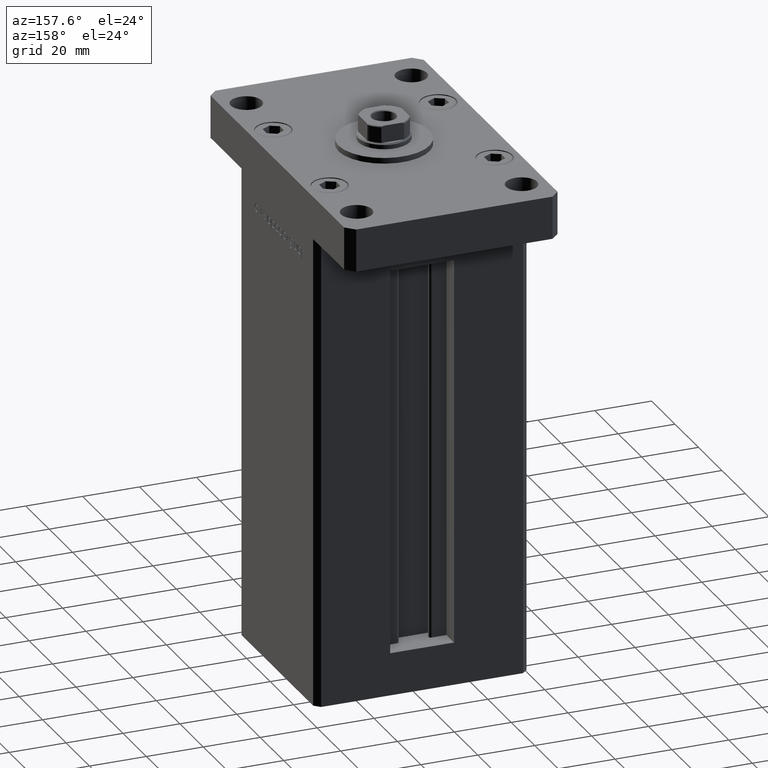
[diagram: clean part render]
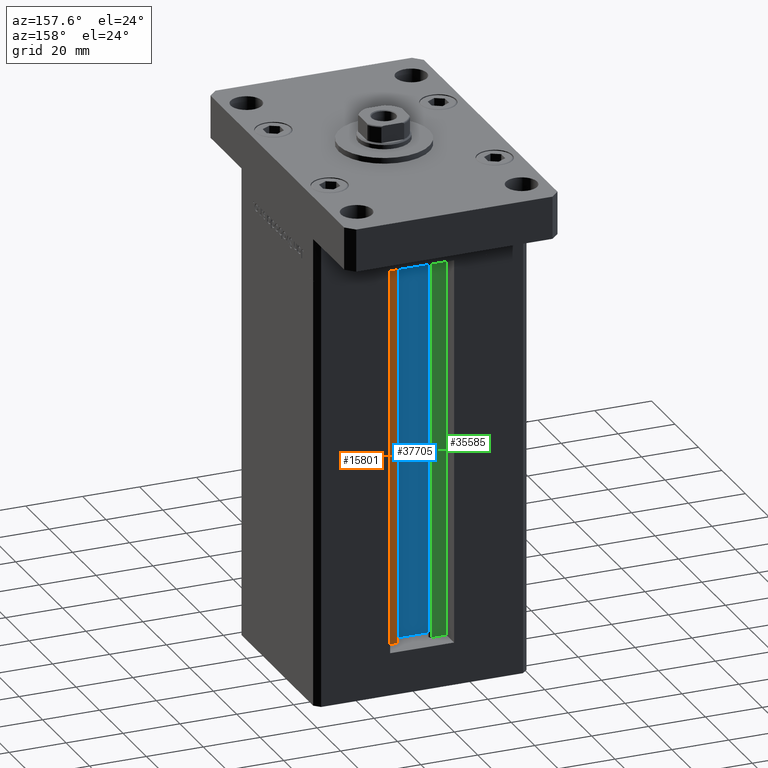
[diagram: same view with three faces highlighted in distinct colors, each labeled with its STEP entity id]
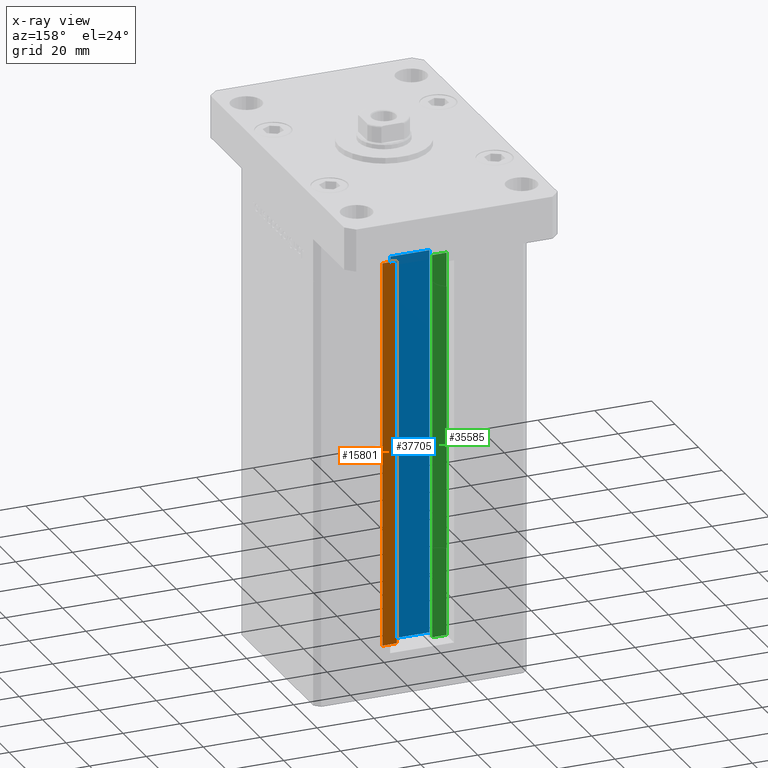
[diagram: x-ray of the same camera — body ghosted, the three highlighted faces saturated]
A machine part, auxiliary view with three faces highlighted in distinct colors.
The next image is the same camera in x-ray (body ghosted, the three faces saturated) — at least one of them is partly hidden behind the body in this view.
Their STEP definitions:

[orange] entity #15801 — the highlighted planar face has unit normal (0, -1, 0).
#1456 = LINE ( 'NONE', #17979, #17795 ) ;
#1717 = EDGE_CURVE ( 'NONE', #27818, #31714, #51687, .T. ) ;
#4331 = CARTESIAN_POINT ( 'NONE',  ( 6.183333333334001480, 25.99999999999999289, 0.000000000000000000 ) ) ;
#4594 = DIRECTION ( 'NONE',  ( -0.000000000000000000, -0.000000000000000000, 1.000000000000000000 ) ) ;
#5490 = VECTOR ( 'NONE', #4594, 1000.000000000000000 ) ;
#8040 = CARTESIAN_POINT ( 'NONE',  ( 6.183333333334001480, 25.99999999999999289, 0.000000000000000000 ) ) ;
#9654 = LINE ( 'NONE', #33527, #47118 ) ;
#10383 = CARTESIAN_POINT ( 'NONE',  ( 11.25000000000000178, 25.99999999999999289, 136.0000000000000000 ) ) ;
#12107 = DIRECTION ( 'NONE',  ( 0.000000000000000000, -1.000000000000000000, 0.000000000000000000 ) ) ;
#12737 = LINE ( 'NONE', #4331, #5490 ) ;
#14523 = CARTESIAN_POINT ( 'NONE',  ( 11.25000000000000178, 25.99999999999999289, 0.000000000000000000 ) ) ;
#14525 = ORIENTED_EDGE ( 'NONE', *, *, #47821, .T. ) ;
#14785 = DIRECTION ( 'NONE',  ( -0.000000000000000000, -0.000000000000000000, 1.000000000000000000 ) ) ;
#15801 = ADVANCED_FACE ( 'NONE', ( #32999 ), #32457, .F. ) ;
#15943 = EDGE_CURVE ( 'NONE', #31714, #41913, #9654, .T. ) ;
#17795 = VECTOR ( 'NONE', #43206, 1000.000000000000000 ) ;
#17979 = CARTESIAN_POINT ( 'NONE',  ( 6.183333333334001480, 25.99999999999999289, 0.000000000000000000 ) ) ;
#19761 = CARTESIAN_POINT ( 'NONE',  ( 6.183333333334001480, 25.99999999999999289, 136.0000000000000000 ) ) ;
#20897 = EDGE_CURVE ( 'NONE', #50187, #27818, #1456, .T. ) ;
#23671 = ORIENTED_EDGE ( 'NONE', *, *, #1717, .F. ) ;
#24989 = CARTESIAN_POINT ( 'NONE',  ( 11.25000000000000178, 25.99999999999999289, 0.000000000000000000 ) ) ;
#26206 = DIRECTION ( 'NONE',  ( -1.000000000000000000, 0.000000000000000000, 0.000000000000000000 ) ) ;
#26784 = AXIS2_PLACEMENT_3D ( 'NONE', #8040, #12107, #49548 ) ;
#27818 = VERTEX_POINT ( 'NONE', #24989 ) ;
#27909 = ORIENTED_EDGE ( 'NONE', *, *, #20897, .F. ) ;
#29937 = EDGE_LOOP ( 'NONE', ( #23671, #27909, #14525, #51640 ) ) ;
#31714 = VERTEX_POINT ( 'NONE', #10383 ) ;
#32457 = PLANE ( 'NONE',  #26784 ) ;
#32999 = FACE_OUTER_BOUND ( 'NONE', #29937, .T. ) ;
#33527 = CARTESIAN_POINT ( 'NONE',  ( 0.000000000000000000, 25.99999999999999289, 136.0000000000000000 ) ) ;
#36017 = CARTESIAN_POINT ( 'NONE',  ( 6.183333333334001480, 25.99999999999999289, 0.000000000000000000 ) ) ;
#41913 = VERTEX_POINT ( 'NONE', #19761 ) ;
#43206 = DIRECTION ( 'NONE',  ( 1.000000000000000000, 0.000000000000000000, 0.000000000000000000 ) ) ;
#47118 = VECTOR ( 'NONE', #26206, 1000.000000000000000 ) ;
#47492 = VECTOR ( 'NONE', #14785, 1000.000000000000000 ) ;
#47821 = EDGE_CURVE ( 'NONE', #50187, #41913, #12737, .T. ) ;
#49548 = DIRECTION ( 'NONE',  ( 0.000000000000000000, -0.000000000000000000, -1.000000000000000000 ) ) ;
#50187 = VERTEX_POINT ( 'NONE', #36017 ) ;
#51640 = ORIENTED_EDGE ( 'NONE', *, *, #15943, .F. ) ;
#51687 = LINE ( 'NONE', #14523, #47492 ) ;

[blue] entity #37705 — the highlighted planar face has unit normal (0, -1, 0).
#3176 = DIRECTION ( 'NONE',  ( 1.000000000000000000, -0.000000000000000000, -0.000000000000000000 ) ) ;
#4406 = FACE_OUTER_BOUND ( 'NONE', #36964, .T. ) ;
#5123 = LINE ( 'NONE', #50427, #17361 ) ;
#5239 = CARTESIAN_POINT ( 'NONE',  ( 0.000000000000000000, 21.99999999999986855, 136.0000000000000000 ) ) ;
#6547 = VERTEX_POINT ( 'NONE', #8927 ) ;
#8293 = VECTOR ( 'NONE', #46469, 1000.000000000000000 ) ;
#8369 = EDGE_CURVE ( 'NONE', #6547, #21689, #15712, .T. ) ;
#8417 = EDGE_CURVE ( 'NONE', #6547, #53421, #5123, .T. ) ;
#8927 = CARTESIAN_POINT ( 'NONE',  ( -6.876153656360466826, 21.99999999999986855, 0.000000000000000000 ) ) ;
#8955 = ORIENTED_EDGE ( 'NONE', *, *, #16824, .F. ) ;
#10427 = VECTOR ( 'NONE', #48814, 1000.000000000000000 ) ;
#13797 = CARTESIAN_POINT ( 'NONE',  ( 6.876153656360466826, 21.99999999999986855, 0.000000000000000000 ) ) ;
#14586 = DIRECTION ( 'NONE',  ( -0.000000000000000000, -0.000000000000000000, 1.000000000000000000 ) ) ;
#15712 = LINE ( 'NONE', #32274, #10427 ) ;
#16824 = EDGE_CURVE ( 'NONE', #53421, #27337, #50953, .T. ) ;
#17361 = VECTOR ( 'NONE', #3176, 1000.000000000000000 ) ;
#21050 = CARTESIAN_POINT ( 'NONE',  ( 6.876153656360466826, 21.99999999999986855, 0.000000000000000000 ) ) ;
#21689 = VERTEX_POINT ( 'NONE', #34033 ) ;
#21974 = VECTOR ( 'NONE', #14586, 1000.000000000000000 ) ;
#27337 = VERTEX_POINT ( 'NONE', #39206 ) ;
#32274 = CARTESIAN_POINT ( 'NONE',  ( -6.876153656360466826, 21.99999999999986855, 0.000000000000000000 ) ) ;
#34033 = CARTESIAN_POINT ( 'NONE',  ( -6.876153656360466826, 21.99999999999986855, 136.0000000000000000 ) ) ;
#34601 = AXIS2_PLACEMENT_3D ( 'NONE', #53499, #41028, #45911 ) ;
#36964 = EDGE_LOOP ( 'NONE', ( #8955, #41465, #42725, #49635 ) ) ;
#37705 = ADVANCED_FACE ( 'NONE', ( #4406 ), #49978, .F. ) ;
#38590 = LINE ( 'NONE', #5239, #8293 ) ;
#39206 = CARTESIAN_POINT ( 'NONE',  ( 6.876153656360466826, 21.99999999999986855, 136.0000000000000000 ) ) ;
#41028 = DIRECTION ( 'NONE',  ( 0.000000000000000000, -1.000000000000000000, -0.000000000000000000 ) ) ;
#41465 = ORIENTED_EDGE ( 'NONE', *, *, #8417, .F. ) ;
#42725 = ORIENTED_EDGE ( 'NONE', *, *, #8369, .T. ) ;
#45911 = DIRECTION ( 'NONE',  ( 0.000000000000000000, 0.000000000000000000, -1.000000000000000000 ) ) ;
#46469 = DIRECTION ( 'NONE',  ( -1.000000000000000000, 0.000000000000000000, 0.000000000000000000 ) ) ;
#48814 = DIRECTION ( 'NONE',  ( -0.000000000000000000, -0.000000000000000000, 1.000000000000000000 ) ) ;
#49635 = ORIENTED_EDGE ( 'NONE', *, *, #51592, .F. ) ;
#49978 = PLANE ( 'NONE',  #34601 ) ;
#50427 = CARTESIAN_POINT ( 'NONE',  ( 6.876153656360466826, 21.99999999999986855, 0.000000000000000000 ) ) ;
#50953 = LINE ( 'NONE', #13797, #21974 ) ;
#51592 = EDGE_CURVE ( 'NONE', #27337, #21689, #38590, .T. ) ;
#53421 = VERTEX_POINT ( 'NONE', #21050 ) ;
#53499 = CARTESIAN_POINT ( 'NONE',  ( 6.876153656360466826, 21.99999999999986855, 0.000000000000000000 ) ) ;

[green] entity #35585 — the highlighted planar face has unit normal (0, -1, 0).
#143 = ORIENTED_EDGE ( 'NONE', *, *, #7547, .F. ) ;
#1242 = VECTOR ( 'NONE', #20948, 1000.000000000000000 ) ;
#2373 = EDGE_CURVE ( 'NONE', #6392, #9200, #21748, .T. ) ;
#3088 = DIRECTION ( 'NONE',  ( 0.000000000000000000, 0.000000000000000000, -1.000000000000000000 ) ) ;
#3196 = DIRECTION ( 'NONE',  ( -1.000000000000000000, 0.000000000000000000, 0.000000000000000000 ) ) ;
#3352 = DIRECTION ( 'NONE',  ( 0.000000000000000000, -1.000000000000000000, -0.000000000000000000 ) ) ;
#4935 = CARTESIAN_POINT ( 'NONE',  ( -11.25000000000000178, 25.99999999999999289, 0.000000000000000000 ) ) ;
#6392 = VERTEX_POINT ( 'NONE', #33341 ) ;
#7211 = EDGE_CURVE ( 'NONE', #41912, #6392, #14469, .T. ) ;
#7427 = CARTESIAN_POINT ( 'NONE',  ( -6.183333333334001480, 25.99999999999999289, 0.000000000000000000 ) ) ;
#7547 = EDGE_CURVE ( 'NONE', #9200, #15463, #7801, .T. ) ;
#7801 = LINE ( 'NONE', #49577, #9580 ) ;
#9200 = VERTEX_POINT ( 'NONE', #21403 ) ;
#9580 = VECTOR ( 'NONE', #3196, 1000.000000000000000 ) ;
#13442 = CARTESIAN_POINT ( 'NONE',  ( -11.25000000000000178, 25.99999999999999289, 136.0000000000000000 ) ) ;
#14469 = LINE ( 'NONE', #31027, #50246 ) ;
#15463 = VERTEX_POINT ( 'NONE', #13442 ) ;
#16865 = DIRECTION ( 'NONE',  ( -0.000000000000000000, -0.000000000000000000, 1.000000000000000000 ) ) ;
#17359 = EDGE_CURVE ( 'NONE', #41912, #15463, #26094, .T. ) ;
#18082 = ORIENTED_EDGE ( 'NONE', *, *, #2373, .F. ) ;
#20948 = DIRECTION ( 'NONE',  ( -0.000000000000000000, -0.000000000000000000, 1.000000000000000000 ) ) ;
#21403 = CARTESIAN_POINT ( 'NONE',  ( -6.183333333334001480, 25.99999999999999289, 136.0000000000000000 ) ) ;
#21748 = LINE ( 'NONE', #49973, #23270 ) ;
#22334 = DIRECTION ( 'NONE',  ( 1.000000000000000000, -0.000000000000000000, -0.000000000000000000 ) ) ;
#23270 = VECTOR ( 'NONE', #16865, 1000.000000000000000 ) ;
#24761 = PLANE ( 'NONE',  #39741 ) ;
#25229 = ORIENTED_EDGE ( 'NONE', *, *, #17359, .T. ) ;
#26094 = LINE ( 'NONE', #4935, #1242 ) ;
#31027 = CARTESIAN_POINT ( 'NONE',  ( -6.183333333334001480, 25.99999999999999289, 0.000000000000000000 ) ) ;
#33341 = CARTESIAN_POINT ( 'NONE',  ( -6.183333333334001480, 25.99999999999999289, 0.000000000000000000 ) ) ;
#35585 = ADVANCED_FACE ( 'NONE', ( #44847 ), #24761, .F. ) ;
#39700 = EDGE_LOOP ( 'NONE', ( #18082, #53280, #25229, #143 ) ) ;
#39741 = AXIS2_PLACEMENT_3D ( 'NONE', #7427, #3352, #3088 ) ;
#40658 = CARTESIAN_POINT ( 'NONE',  ( -11.25000000000000178, 25.99999999999999289, 0.000000000000000000 ) ) ;
#41912 = VERTEX_POINT ( 'NONE', #40658 ) ;
#44847 = FACE_OUTER_BOUND ( 'NONE', #39700, .T. ) ;
#49577 = CARTESIAN_POINT ( 'NONE',  ( 0.000000000000000000, 25.99999999999999289, 136.0000000000000000 ) ) ;
#49973 = CARTESIAN_POINT ( 'NONE',  ( -6.183333333334001480, 25.99999999999999289, 0.000000000000000000 ) ) ;
#50246 = VECTOR ( 'NONE', #22334, 1000.000000000000000 ) ;
#53280 = ORIENTED_EDGE ( 'NONE', *, *, #7211, .F. ) ;